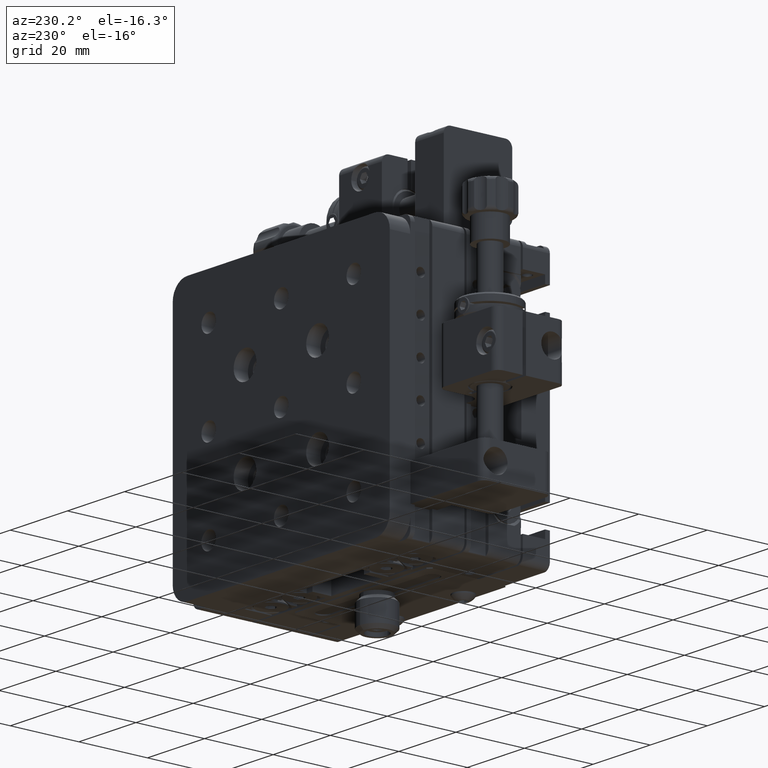
[diagram: clean part render]
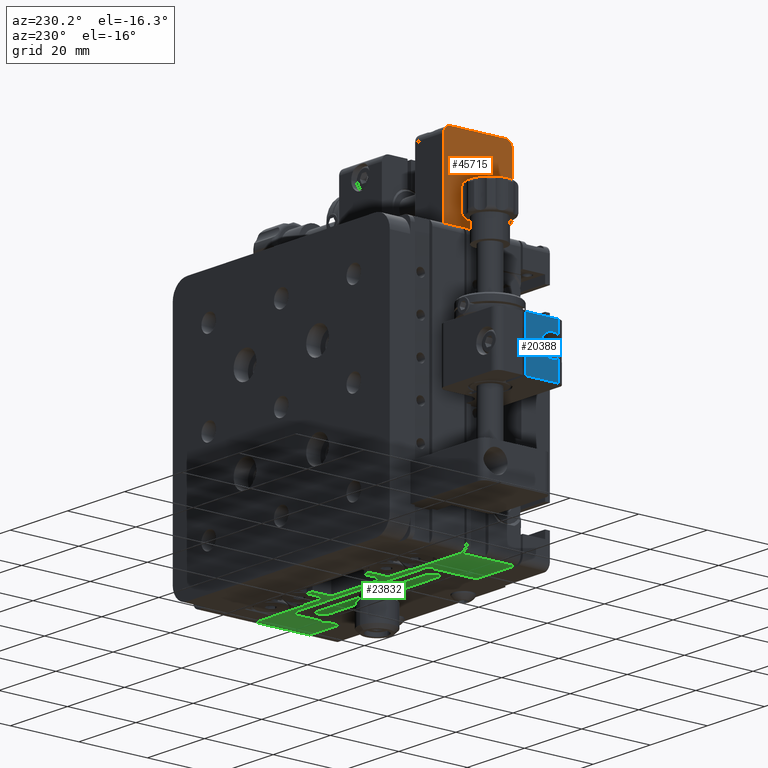
[diagram: same view with three faces highlighted in distinct colors, each labeled with its STEP entity id]
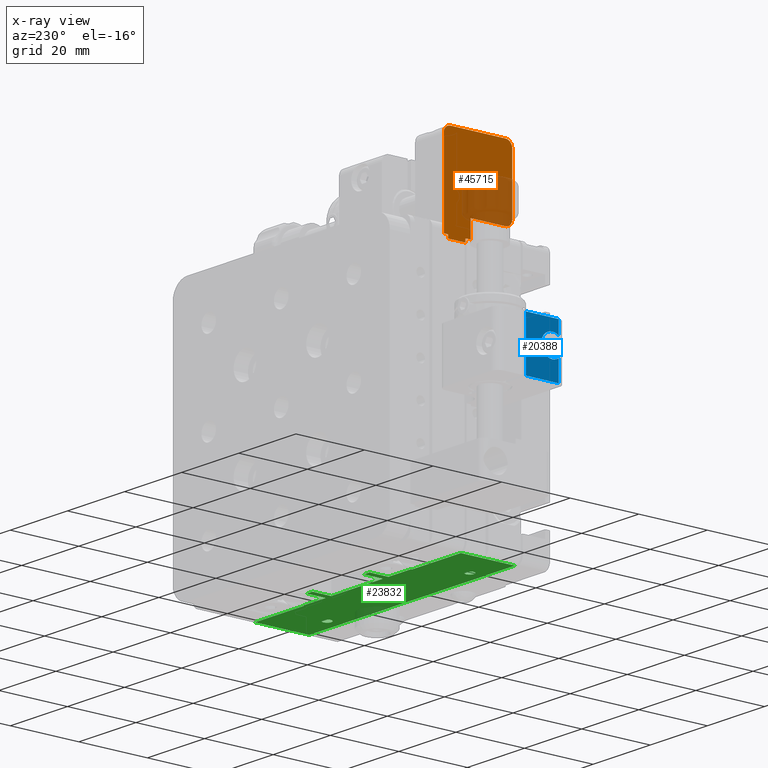
[diagram: x-ray of the same camera — body ghosted, the three highlighted faces saturated]
A machine part, auxiliary view with three faces highlighted in distinct colors.
The next image is the same camera in x-ray (body ghosted, the three faces saturated) — at least one of them is partly hidden behind the body in this view.
Their STEP definitions:

[orange] entity #45715 — the highlighted planar face has unit normal (1, -0, -0).
#528 = ORIENTED_EDGE ( 'NONE', *, *, #18943, .F. ) ;
#1100 = CARTESIAN_POINT ( 'NONE',  ( -12.90904611341228000, -13.67927325432013300, 166.6500000000001800 ) ) ;
#2164 = LINE ( 'NONE', #6871, #31896 ) ;
#2196 = DIRECTION ( 'NONE',  ( 1.000000000000000000, -1.110223024625156000E-016, -7.227914031696188500E-019 ) ) ;
#2793 = EDGE_CURVE ( 'NONE', #43805, #29970, #38600, .T. ) ;
#3401 = CARTESIAN_POINT ( 'NONE',  ( -12.90904611341228000, -13.67927325432012300, 148.1500000000002000 ) ) ;
#3475 = CARTESIAN_POINT ( 'NONE',  ( -12.90904611341228000, -3.479273254320129900, 146.1500000000001500 ) ) ;
#3511 = DIRECTION ( 'NONE',  ( 1.000000000000000000, -1.110223024625156000E-016, -7.227914031693551900E-019 ) ) ;
#3629 = DIRECTION ( 'NONE',  ( 1.110223024625154800E-016, 1.000000000000000000, 5.965587692102107000E-016 ) ) ;
#3852 = DIRECTION ( 'NONE',  ( 1.110223024625154400E-016, 1.000000000000000000, -4.681921624082249700E-014 ) ) ;
#4567 = CARTESIAN_POINT ( 'NONE',  ( -12.90904611341228000, -15.67927325432013100, 164.6500000000001800 ) ) ;
#4793 = AXIS2_PLACEMENT_3D ( 'NONE', #25463, #2196, #29359 ) ;
#5714 = DIRECTION ( 'NONE',  ( 7.227914031695526000E-019, -5.965587692102110000E-016, 1.000000000000000000 ) ) ;
#5840 = ORIENTED_EDGE ( 'NONE', *, *, #21191, .F. ) ;
#6229 = CARTESIAN_POINT ( 'NONE',  ( -12.90904611341227900, 4.320726745679873000, 164.6500000000001500 ) ) ;
#6625 = DIRECTION ( 'NONE',  ( 1.000000000000000000, -1.110223024625156000E-016, -7.227914031693551900E-019 ) ) ;
#6871 = CARTESIAN_POINT ( 'NONE',  ( -12.90904611341228000, -3.479273254320127200, 141.1500000000002300 ) ) ;
#7324 = DIRECTION ( 'NONE',  ( 0.0000000000000000000, -8.673617379884027600E-016, 1.000000000000000000 ) ) ;
#7509 = DIRECTION ( 'NONE',  ( 1.110223024625154800E-016, 1.000000000000000000, -5.015781888361816800E-015 ) ) ;
#7637 = ORIENTED_EDGE ( 'NONE', *, *, #16347, .F. ) ;
#7757 = EDGE_CURVE ( 'NONE', #26140, #34397, #47837, .T. ) ;
#7977 = CARTESIAN_POINT ( 'NONE',  ( -12.90904611341228000, -1.979273254320125900, 140.1500000000002000 ) ) ;
#8071 = VECTOR ( 'NONE', #47791, 1000.000000000000000 ) ;
#8097 = EDGE_CURVE ( 'NONE', #24810, #43805, #21140, .T. ) ;
#8159 = EDGE_CURVE ( 'NONE', #25894, #24810, #46016, .T. ) ;
#9299 = VERTEX_POINT ( 'NONE', #12366 ) ;
#9469 = CARTESIAN_POINT ( 'NONE',  ( -12.90904611341228000, -15.67927325432012400, 148.1500000000002000 ) ) ;
#9822 = PLANE ( 'NONE',  #4793 ) ;
#10023 = VERTEX_POINT ( 'NONE', #25569 ) ;
#10148 = LINE ( 'NONE', #24076, #29576 ) ;
#10180 = VERTEX_POINT ( 'NONE', #46214 ) ;
#10186 = CARTESIAN_POINT ( 'NONE',  ( -12.90904611341227900, 4.320726745679887200, 141.1500000000002300 ) ) ;
#11005 = VECTOR ( 'NONE', #22637, 1000.000000000000000 ) ;
#11386 = CARTESIAN_POINT ( 'NONE',  ( -12.90904611341228000, -13.67927325432012100, 146.1500000000002000 ) ) ;
#12366 = CARTESIAN_POINT ( 'NONE',  ( -12.90904611341228000, -3.479273254320127200, 141.1500000000002300 ) ) ;
#13390 = DIRECTION ( 'NONE',  ( -7.227914031695526000E-019, 5.965587692102110000E-016, -1.000000000000000000 ) ) ;
#13428 = LINE ( 'NONE', #18775, #11005 ) ;
#13959 = EDGE_LOOP ( 'NONE', ( #28003, #17844, #41839, #7637, #16393, #528, #41222, #19794, #34221, #29233, #41847, #20401, #5840 ) ) ;
#15099 = VECTOR ( 'NONE', #5714, 1000.000000000000000 ) ;
#15571 = CARTESIAN_POINT ( 'NONE',  ( -12.90904611341228000, 3.020726745679874100, 141.1500000000002300 ) ) ;
#16347 = EDGE_CURVE ( 'NONE', #34397, #25894, #25410, .T. ) ;
#16393 = ORIENTED_EDGE ( 'NONE', *, *, #7757, .F. ) ;
#16446 = CARTESIAN_POINT ( 'NONE',  ( -12.90904611341228000, 3.020726745679874100, 140.1500000000002000 ) ) ;
#17256 = VECTOR ( 'NONE', #13390, 1000.000000000000000 ) ;
#17844 = ORIENTED_EDGE ( 'NONE', *, *, #8097, .F. ) ;
#18033 = EDGE_CURVE ( 'NONE', #21250, #9299, #2164, .T. ) ;
#18400 = LINE ( 'NONE', #35980, #8071 ) ;
#18478 = LINE ( 'NONE', #40509, #17256 ) ;
#18775 = CARTESIAN_POINT ( 'NONE',  ( -12.90904611341228000, -15.67927325432013100, 164.6500000000001800 ) ) ;
#18943 = EDGE_CURVE ( 'NONE', #40508, #26140, #18400, .T. ) ;
#19523 = VECTOR ( 'NONE', #7509, 1000.000000000000000 ) ;
#19794 = ORIENTED_EDGE ( 'NONE', *, *, #20482, .F. ) ;
#20401 = ORIENTED_EDGE ( 'NONE', *, *, #38504, .F. ) ;
#20482 = EDGE_CURVE ( 'NONE', #10180, #46958, #18478, .T. ) ;
#20715 = LINE ( 'NONE', #11386, #19523 ) ;
#21128 = CARTESIAN_POINT ( 'NONE',  ( -12.90904611341227900, 4.320726745679887200, 141.1500000000002300 ) ) ;
#21140 = LINE ( 'NONE', #33095, #40533 ) ;
#21191 = EDGE_CURVE ( 'NONE', #29970, #48721, #13428, .T. ) ;
#21250 = VERTEX_POINT ( 'NONE', #3475 ) ;
#22637 = DIRECTION ( 'NONE',  ( -7.227914031695526000E-019, 5.965587692102110000E-016, -1.000000000000000000 ) ) ;
#22948 = CARTESIAN_POINT ( 'NONE',  ( -12.90904611341227900, 4.320726745679887200, 141.1500000000002300 ) ) ;
#23189 = CARTESIAN_POINT ( 'NONE',  ( -12.90904611341228000, -3.479273254320127200, 141.1500000000002300 ) ) ;
#23664 = FACE_OUTER_BOUND ( 'NONE', #13959, .T. ) ;
#24076 = CARTESIAN_POINT ( 'NONE',  ( -12.90904611341228000, 3.020726745679874100, 140.1500000000002000 ) ) ;
#24810 = VERTEX_POINT ( 'NONE', #44115 ) ;
#25317 = DIRECTION ( 'NONE',  ( -1.110223024625154800E-016, -1.000000000000000000, 2.981308399991953000E-015 ) ) ;
#25410 = LINE ( 'NONE', #21128, #15099 ) ;
#25463 = CARTESIAN_POINT ( 'NONE',  ( -12.90904611341228000, -13.67927325432013300, 164.6500000000002000 ) ) ;
#25569 = CARTESIAN_POINT ( 'NONE',  ( -12.90904611341228000, -13.67927325432012100, 146.1500000000002000 ) ) ;
#25894 = VERTEX_POINT ( 'NONE', #6229 ) ;
#26140 = VERTEX_POINT ( 'NONE', #15571 ) ;
#26241 = DIRECTION ( 'NONE',  ( -7.227914031695526000E-019, 5.965587692102110000E-016, -1.000000000000000000 ) ) ;
#26789 = CARTESIAN_POINT ( 'NONE',  ( -12.90904611341228000, -13.67927325432013300, 164.6500000000002000 ) ) ;
#26816 = EDGE_CURVE ( 'NONE', #46958, #40508, #10148, .T. ) ;
#27973 = DIRECTION ( 'NONE',  ( 1.110223024625154800E-016, 1.000000000000000000, 1.984337549991656100E-015 ) ) ;
#28003 = ORIENTED_EDGE ( 'NONE', *, *, #2793, .F. ) ;
#28859 = AXIS2_PLACEMENT_3D ( 'NONE', #26789, #3511, #30668 ) ;
#29233 = ORIENTED_EDGE ( 'NONE', *, *, #18033, .F. ) ;
#29359 = DIRECTION ( 'NONE',  ( 7.227914031695526000E-019, -5.965587692102110000E-016, 1.000000000000000000 ) ) ;
#29576 = VECTOR ( 'NONE', #27973, 1000.000000000000000 ) ;
#29882 = CARTESIAN_POINT ( 'NONE',  ( -12.90904611341228000, 2.320726745679871700, 164.6500000000001500 ) ) ;
#29970 = VERTEX_POINT ( 'NONE', #4567 ) ;
#30554 = DIRECTION ( 'NONE',  ( 1.000000000000000000, -1.110223024625156000E-016, -7.227914031693551900E-019 ) ) ;
#30668 = DIRECTION ( 'NONE',  ( 0.0000000000000000000, -8.673617379884027600E-016, 1.000000000000000000 ) ) ;
#31896 = VECTOR ( 'NONE', #26241, 1000.000000000000000 ) ;
#33095 = CARTESIAN_POINT ( 'NONE',  ( -12.90904611341228000, 2.320726745679869900, 166.6500000000001500 ) ) ;
#33549 = EDGE_CURVE ( 'NONE', #9299, #10180, #36604, .T. ) ;
#33768 = DIRECTION ( 'NONE',  ( 0.0000000000000000000, -6.505213034913020700E-016, 1.000000000000000000 ) ) ;
#34221 = ORIENTED_EDGE ( 'NONE', *, *, #33549, .F. ) ;
#34397 = VERTEX_POINT ( 'NONE', #10186 ) ;
#35980 = CARTESIAN_POINT ( 'NONE',  ( -12.90904611341228000, 3.020726745679874100, 140.1500000000002000 ) ) ;
#36604 = LINE ( 'NONE', #23189, #45683 ) ;
#37807 = AXIS2_PLACEMENT_3D ( 'NONE', #29882, #6625, #33768 ) ;
#38504 = EDGE_CURVE ( 'NONE', #48721, #10023, #46817, .T. ) ;
#38600 = CIRCLE ( 'NONE', #28859, 2.000000000000001800 ) ;
#40508 = VERTEX_POINT ( 'NONE', #16446 ) ;
#40509 = CARTESIAN_POINT ( 'NONE',  ( -12.90904611341228000, -1.979273254320125900, 140.1500000000002000 ) ) ;
#40533 = VECTOR ( 'NONE', #25317, 1000.000000000000000 ) ;
#41222 = ORIENTED_EDGE ( 'NONE', *, *, #26816, .F. ) ;
#41385 = EDGE_CURVE ( 'NONE', #10023, #21250, #20715, .T. ) ;
#41839 = ORIENTED_EDGE ( 'NONE', *, *, #8159, .F. ) ;
#41847 = ORIENTED_EDGE ( 'NONE', *, *, #41385, .F. ) ;
#43805 = VERTEX_POINT ( 'NONE', #1100 ) ;
#44115 = CARTESIAN_POINT ( 'NONE',  ( -12.90904611341228000, 2.320726745679869900, 166.6500000000001500 ) ) ;
#45683 = VECTOR ( 'NONE', #3852, 1000.000000000000000 ) ;
#45715 = ADVANCED_FACE ( 'NONE', ( #23664 ), #9822, .F. ) ;
#46016 = CIRCLE ( 'NONE', #37807, 2.000000000000001800 ) ;
#46214 = CARTESIAN_POINT ( 'NONE',  ( -12.90904611341228000, -1.979273254320126800, 141.1500000000001500 ) ) ;
#46657 = VECTOR ( 'NONE', #3629, 1000.000000000000000 ) ;
#46817 = CIRCLE ( 'NONE', #47354, 2.000000000000001800 ) ;
#46958 = VERTEX_POINT ( 'NONE', #7977 ) ;
#47354 = AXIS2_PLACEMENT_3D ( 'NONE', #3401, #30554, #7324 ) ;
#47791 = DIRECTION ( 'NONE',  ( 7.227914031695526000E-019, -5.965587692102110000E-016, 1.000000000000000000 ) ) ;
#47837 = LINE ( 'NONE', #22948, #46657 ) ;
#48721 = VERTEX_POINT ( 'NONE', #9469 ) ;

[blue] entity #20388 — the highlighted planar face has unit normal (-1, 0, -0).
#640 = CARTESIAN_POINT ( 'NONE',  ( -46.40904611341228000, 0.5207267456799804500, 108.1499999999999500 ) ) ;
#1034 = DIRECTION ( 'NONE',  ( 2.522337235784662800E-044, 1.609823385706477300E-014, 1.000000000000000000 ) ) ;
#1505 = DIRECTION ( 'NONE',  ( -4.733165431326042800E-030, 1.000000000000000000, -1.609823385706477000E-014 ) ) ;
#1705 = ORIENTED_EDGE ( 'NONE', *, *, #39768, .F. ) ;
#1718 = ORIENTED_EDGE ( 'NONE', *, *, #46557, .F. ) ;
#2433 = CARTESIAN_POINT ( 'NONE',  ( -46.40904611341228000, -1.279273254319987800, 110.8560118255469400 ) ) ;
#4042 = EDGE_CURVE ( 'NONE', #37215, #23557, #37737, .T. ) ;
#4542 = DIRECTION ( 'NONE',  ( 0.0000000000000000000, 1.611291228647687000E-014, 1.000000000000000000 ) ) ;
#6758 = VERTEX_POINT ( 'NONE', #47044 ) ;
#7876 = ORIENTED_EDGE ( 'NONE', *, *, #9279, .F. ) ;
#8535 = CARTESIAN_POINT ( 'NONE',  ( -46.40904611341228000, -1.279273254319800400, 121.6500000000000300 ) ) ;
#8719 = DIRECTION ( 'NONE',  ( -1.000000000000000000, 4.141519752410293100E-030, -8.628933199850131800E-044 ) ) ;
#9279 = EDGE_CURVE ( 'NONE', #11195, #37215, #35677, .T. ) ;
#10198 = CARTESIAN_POINT ( 'NONE',  ( -46.40904611341228000, 0.5207267456799284900, 104.8999999999999600 ) ) ;
#10214 = FACE_OUTER_BOUND ( 'NONE', #20219, .T. ) ;
#10831 = VECTOR ( 'NONE', #27883, 1000.000000000000000 ) ;
#11195 = VERTEX_POINT ( 'NONE', #2433 ) ;
#12082 = VECTOR ( 'NONE', #17463, 1000.000000000000000 ) ;
#13445 = AXIS2_PLACEMENT_3D ( 'NONE', #47489, #24307, #1034 ) ;
#13537 = CARTESIAN_POINT ( 'NONE',  ( -46.40904611341228000, -3.279273254319934300, 114.6500000000000500 ) ) ;
#15143 = VERTEX_POINT ( 'NONE', #22966 ) ;
#16879 = CARTESIAN_POINT ( 'NONE',  ( -46.40904611341228000, 8.220726745680121200, 114.6499999999998600 ) ) ;
#16955 = ORIENTED_EDGE ( 'NONE', *, *, #26806, .F. ) ;
#17463 = DIRECTION ( 'NONE',  ( -4.733165431326042800E-030, 1.000000000000000000, -1.609823385706477000E-014 ) ) ;
#20084 = CARTESIAN_POINT ( 'NONE',  ( -46.40904611341228000, -1.279273254320168400, 99.64999999999996300 ) ) ;
#20219 = EDGE_LOOP ( 'NONE', ( #7876, #1705, #46215, #43390, #45606, #1718, #16955, #46933 ) ) ;
#20388 = ADVANCED_FACE ( 'NONE', ( #10214 ), #39525, .T. ) ;
#20856 = CARTESIAN_POINT ( 'NONE',  ( -46.40904611341228000, 8.220726745679854700, 99.64999999999980700 ) ) ;
#21976 = DIRECTION ( 'NONE',  ( -1.000000000000000000, 4.141519752410293100E-030, -8.628933199850131800E-044 ) ) ;
#22180 = CARTESIAN_POINT ( 'NONE',  ( -46.40904611341228000, 0.5207267456800328500, 111.3999999999999500 ) ) ;
#22390 = CARTESIAN_POINT ( 'NONE',  ( -46.40904611341228000, -1.279273254319800400, 121.6500000000000300 ) ) ;
#22966 = CARTESIAN_POINT ( 'NONE',  ( -46.40904611341228000, 8.220726745679854700, 99.64999999999980700 ) ) ;
#23557 = VERTEX_POINT ( 'NONE', #10198 ) ;
#23723 = AXIS2_PLACEMENT_3D ( 'NONE', #31944, #8719, #35892 ) ;
#23982 = CARTESIAN_POINT ( 'NONE',  ( -46.40904611341228000, 8.220726745680208200, 121.6499999999998800 ) ) ;
#24307 = DIRECTION ( 'NONE',  ( -1.000000000000000000, 4.141519752410293800E-030, -4.144778114010728100E-044 ) ) ;
#24754 = VERTEX_POINT ( 'NONE', #16879 ) ;
#25782 = CARTESIAN_POINT ( 'NONE',  ( -46.40904611341228000, -1.279273254319925400, 114.6500000000000200 ) ) ;
#26355 = DIRECTION ( 'NONE',  ( -2.522337235784663300E-044, -1.609823385706477000E-014, -1.000000000000000000 ) ) ;
#26522 = LINE ( 'NONE', #8535, #47115 ) ;
#26806 = EDGE_CURVE ( 'NONE', #23557, #6758, #31981, .T. ) ;
#27203 = VECTOR ( 'NONE', #26355, 1000.000000000000000 ) ;
#27318 = LINE ( 'NONE', #20856, #37599 ) ;
#27811 = DIRECTION ( 'NONE',  ( -1.000000000000000000, 4.141519752410293100E-030, -8.628933199850131800E-044 ) ) ;
#27883 = DIRECTION ( 'NONE',  ( -2.522337235784663300E-044, -1.609823385706477000E-014, -1.000000000000000000 ) ) ;
#28529 = VERTEX_POINT ( 'NONE', #25782 ) ;
#29332 = EDGE_CURVE ( 'NONE', #24754, #15143, #36937, .T. ) ;
#31944 = CARTESIAN_POINT ( 'NONE',  ( -46.40904611341228000, 0.5207267456799804500, 108.1499999999999500 ) ) ;
#31981 = CIRCLE ( 'NONE', #48298, 3.250000000000002700 ) ;
#32717 = LINE ( 'NONE', #13537, #12082 ) ;
#34352 = AXIS2_PLACEMENT_3D ( 'NONE', #45247, #21976, #49107 ) ;
#35677 = CIRCLE ( 'NONE', #34352, 3.250000000000002700 ) ;
#35892 = DIRECTION ( 'NONE',  ( 0.0000000000000000000, 1.611291228647687000E-014, 1.000000000000000000 ) ) ;
#36010 = EDGE_CURVE ( 'NONE', #36411, #15143, #27318, .T. ) ;
#36081 = EDGE_CURVE ( 'NONE', #28529, #24754, #32717, .T. ) ;
#36411 = VERTEX_POINT ( 'NONE', #20084 ) ;
#36937 = LINE ( 'NONE', #23982, #10831 ) ;
#37215 = VERTEX_POINT ( 'NONE', #22180 ) ;
#37481 = LINE ( 'NONE', #22390, #27203 ) ;
#37599 = VECTOR ( 'NONE', #1505, 1000.000000000000000 ) ;
#37737 = CIRCLE ( 'NONE', #23723, 3.250000000000002700 ) ;
#38897 = DIRECTION ( 'NONE',  ( -2.522337235784663300E-044, -1.609823385706477000E-014, -1.000000000000000000 ) ) ;
#39525 = PLANE ( 'NONE',  #13445 ) ;
#39768 = EDGE_CURVE ( 'NONE', #28529, #11195, #37481, .T. ) ;
#43390 = ORIENTED_EDGE ( 'NONE', *, *, #29332, .T. ) ;
#45247 = CARTESIAN_POINT ( 'NONE',  ( -46.40904611341228000, 0.5207267456799804500, 108.1499999999999500 ) ) ;
#45606 = ORIENTED_EDGE ( 'NONE', *, *, #36010, .F. ) ;
#46215 = ORIENTED_EDGE ( 'NONE', *, *, #36081, .T. ) ;
#46557 = EDGE_CURVE ( 'NONE', #6758, #36411, #26522, .T. ) ;
#46933 = ORIENTED_EDGE ( 'NONE', *, *, #4042, .F. ) ;
#47044 = CARTESIAN_POINT ( 'NONE',  ( -46.40904611341228000, -1.279273254320074700, 105.4439881744530300 ) ) ;
#47115 = VECTOR ( 'NONE', #38897, 1000.000000000000000 ) ;
#47489 = CARTESIAN_POINT ( 'NONE',  ( -46.40904611341228000, 8.220726745680208200, 121.6499999999998800 ) ) ;
#48298 = AXIS2_PLACEMENT_3D ( 'NONE', #640, #27811, #4542 ) ;
#49107 = DIRECTION ( 'NONE',  ( 0.0000000000000000000, 1.611291228647687000E-014, 1.000000000000000000 ) ) ;

[green] entity #23832 — the highlighted planar face has unit normal (-0, 0, 1).
#345 = VERTEX_POINT ( 'NONE', #32593 ) ;
#1170 = VECTOR ( 'NONE', #2807, 1000.000000000000000 ) ;
#1420 = LINE ( 'NONE', #22528, #37813 ) ;
#1837 = CIRCLE ( 'NONE', #47769, 1.249999999999987100 ) ;
#1850 = CARTESIAN_POINT ( 'NONE',  ( -18.90904611341227300, 4.320726745679895200, 65.15000000000021900 ) ) ;
#1854 = CARTESIAN_POINT ( 'NONE',  ( 42.09095388658772000, -7.479273254320102800, 65.15000000000021900 ) ) ;
#2106 = EDGE_CURVE ( 'NONE', #37937, #42158, #20450, .T. ) ;
#2291 = CARTESIAN_POINT ( 'NONE',  ( -1.909046113412280700, 4.320726745679895200, 65.15000000000021900 ) ) ;
#2334 = CARTESIAN_POINT ( 'NONE',  ( -6.659046113412292000, -7.479273254320102800, 65.15000000000021900 ) ) ;
#2690 = EDGE_CURVE ( 'NONE', #43867, #37548, #13122, .T. ) ;
#2765 = DIRECTION ( 'NONE',  ( -1.000000000000000000, 0.0000000000000000000, 0.0000000000000000000 ) ) ;
#2807 = DIRECTION ( 'NONE',  ( 0.0000000000000000000, -1.000000000000000000, 0.0000000000000000000 ) ) ;
#2927 = VERTEX_POINT ( 'NONE', #31001 ) ;
#3245 = ORIENTED_EDGE ( 'NONE', *, *, #38117, .F. ) ;
#3342 = DIRECTION ( 'NONE',  ( -0.0000000000000000000, -1.000000000000000000, -0.0000000000000000000 ) ) ;
#3358 = EDGE_CURVE ( 'NONE', #9298, #33323, #28214, .T. ) ;
#3594 = CARTESIAN_POINT ( 'NONE',  ( 42.09095388658772000, -7.479273254320102800, 65.15000000000021900 ) ) ;
#3678 = EDGE_CURVE ( 'NONE', #345, #39548, #49356, .T. ) ;
#3736 = VECTOR ( 'NONE', #14928, 1000.000000000000000 ) ;
#4199 = VERTEX_POINT ( 'NONE', #49241 ) ;
#4348 = ORIENTED_EDGE ( 'NONE', *, *, #28538, .T. ) ;
#4882 = CARTESIAN_POINT ( 'NONE',  ( 6.090953886587719500, 4.620726745679896800, 65.15000000000021900 ) ) ;
#5051 = AXIS2_PLACEMENT_3D ( 'NONE', #3594, #30739, #7502 ) ;
#5317 = VERTEX_POINT ( 'NONE', #39480 ) ;
#5763 = DIRECTION ( 'NONE',  ( -1.000000000000000000, 0.0000000000000000000, 0.0000000000000000000 ) ) ;
#5995 = LINE ( 'NONE', #39123, #16352 ) ;
#6065 = ORIENTED_EDGE ( 'NONE', *, *, #30232, .T. ) ;
#6080 = ORIENTED_EDGE ( 'NONE', *, *, #6349, .F. ) ;
#6349 = EDGE_CURVE ( 'NONE', #39548, #345, #23882, .T. ) ;
#6559 = DIRECTION ( 'NONE',  ( 0.0000000000000000000, 1.000000000000000000, 0.0000000000000000000 ) ) ;
#7135 = EDGE_LOOP ( 'NONE', ( #23764, #3245 ) ) ;
#7502 = DIRECTION ( 'NONE',  ( -1.000000000000000000, 0.0000000000000000000, 0.0000000000000000000 ) ) ;
#7830 = AXIS2_PLACEMENT_3D ( 'NONE', #39156, #15991, #43028 ) ;
#7881 = CARTESIAN_POINT ( 'NONE',  ( 17.09095388658772300, -7.479273254320102800, 65.15000000000021900 ) ) ;
#8209 = CARTESIAN_POINT ( 'NONE',  ( 17.09095388658771600, 10.12072674567989400, 65.15000000000021900 ) ) ;
#8357 = DIRECTION ( 'NONE',  ( -1.000000000000000000, -2.168404344971008900E-016, 0.0000000000000000000 ) ) ;
#8452 = CARTESIAN_POINT ( 'NONE',  ( 17.09095388658772300, -1.279273254320102400, 65.15000000000021900 ) ) ;
#8691 = VECTOR ( 'NONE', #28314, 1000.000000000000000 ) ;
#8919 = VECTOR ( 'NONE', #33720, 1000.000000000000000 ) ;
#9298 = VERTEX_POINT ( 'NONE', #35641 ) ;
#9432 = CARTESIAN_POINT ( 'NONE',  ( 36.09095388658771200, -3.579273254320105600, 65.15000000000021900 ) ) ;
#10703 = ORIENTED_EDGE ( 'NONE', *, *, #44833, .F. ) ;
#11489 = LINE ( 'NONE', #49287, #1170 ) ;
#11750 = DIRECTION ( 'NONE',  ( -1.000000000000000000, 0.0000000000000000000, 0.0000000000000000000 ) ) ;
#12087 = CARTESIAN_POINT ( 'NONE',  ( 17.09095388658772300, -7.479273254320102800, 65.15000000000021900 ) ) ;
#12204 = AXIS2_PLACEMENT_3D ( 'NONE', #7881, #35042, #11750 ) ;
#12348 = DIRECTION ( 'NONE',  ( -1.000000000000000000, 0.0000000000000000000, 0.0000000000000000000 ) ) ;
#12465 = ORIENTED_EDGE ( 'NONE', *, *, #25393, .F. ) ;
#12764 = DIRECTION ( 'NONE',  ( -0.0000000000000000000, -0.0000000000000000000, -1.000000000000000000 ) ) ;
#12767 = CARTESIAN_POINT ( 'NONE',  ( 8.090953886587719500, 10.12072674567989400, 65.15000000000021900 ) ) ;
#13030 = DIRECTION ( 'NONE',  ( 0.0000000000000000000, -1.000000000000000000, 0.0000000000000000000 ) ) ;
#13122 = LINE ( 'NONE', #21826, #32557 ) ;
#13275 = VERTEX_POINT ( 'NONE', #26409 ) ;
#13282 = CARTESIAN_POINT ( 'NONE',  ( 28.09095388658772000, 10.12072674567989400, 65.15000000000021900 ) ) ;
#13307 = DIRECTION ( 'NONE',  ( 0.0000000000000000000, -1.000000000000000000, 0.0000000000000000000 ) ) ;
#13416 = CIRCLE ( 'NONE', #12204, 1.249999999999990700 ) ;
#13507 = CARTESIAN_POINT ( 'NONE',  ( 40.84095388658773400, -7.479273254320102800, 65.15000000000021900 ) ) ;
#14064 = LINE ( 'NONE', #49477, #3736 ) ;
#14851 = VERTEX_POINT ( 'NONE', #13507 ) ;
#14928 = DIRECTION ( 'NONE',  ( 0.0000000000000000000, -1.000000000000000000, 0.0000000000000000000 ) ) ;
#15032 = CARTESIAN_POINT ( 'NONE',  ( 8.090953886587719500, 4.620726745679893300, 65.15000000000021900 ) ) ;
#15509 = ORIENTED_EDGE ( 'NONE', *, *, #25283, .F. ) ;
#15991 = DIRECTION ( 'NONE',  ( -0.0000000000000000000, 0.0000000000000000000, 1.000000000000000000 ) ) ;
#16011 = CARTESIAN_POINT ( 'NONE',  ( 15.84095388658773200, -7.479273254320102800, 65.15000000000021900 ) ) ;
#16056 = DIRECTION ( 'NONE',  ( -1.000000000000000000, 0.0000000000000000000, 0.0000000000000000000 ) ) ;
#16352 = VECTOR ( 'NONE', #19831, 1000.000000000000000 ) ;
#16646 = VECTOR ( 'NONE', #33586, 1000.000000000000000 ) ;
#17114 = LINE ( 'NONE', #29815, #31061 ) ;
#17138 = FACE_BOUND ( 'NONE', #38351, .T. ) ;
#17263 = VERTEX_POINT ( 'NONE', #1850 ) ;
#18143 = DIRECTION ( 'NONE',  ( 0.0000000000000000000, -1.000000000000000000, 0.0000000000000000000 ) ) ;
#18724 = VECTOR ( 'NONE', #13307, 1000.000000000000000 ) ;
#18732 = VECTOR ( 'NONE', #3342, 1000.000000000000000 ) ;
#18790 = DIRECTION ( 'NONE',  ( -1.000000000000000000, -9.637352644315595200E-017, 0.0000000000000000000 ) ) ;
#18801 = ORIENTED_EDGE ( 'NONE', *, *, #45998, .T. ) ;
#19279 = LINE ( 'NONE', #41319, #8919 ) ;
#19616 = VECTOR ( 'NONE', #31435, 1000.000000000000000 ) ;
#19831 = DIRECTION ( 'NONE',  ( 1.000000000000000000, -4.565061778886334000E-016, 0.0000000000000000000 ) ) ;
#20450 = LINE ( 'NONE', #32904, #29552 ) ;
#20629 = DIRECTION ( 'NONE',  ( -0.0000000000000000000, -0.0000000000000000000, -1.000000000000000000 ) ) ;
#20664 = EDGE_CURVE ( 'NONE', #5317, #40126, #1420, .T. ) ;
#20740 = LINE ( 'NONE', #30479, #25003 ) ;
#20768 = CARTESIAN_POINT ( 'NONE',  ( 17.09095388658771200, 4.620726745679896800, 65.15000000000021900 ) ) ;
#21000 = CARTESIAN_POINT ( 'NONE',  ( 26.09095388658772000, 10.12072674567989400, 65.15000000000021900 ) ) ;
#21826 = CARTESIAN_POINT ( 'NONE',  ( 6.090953886587719500, -3.579273254320105600, 65.15000000000021900 ) ) ;
#21854 = VERTEX_POINT ( 'NONE', #24832 ) ;
#21875 = ORIENTED_EDGE ( 'NONE', *, *, #2690, .F. ) ;
#22144 = ORIENTED_EDGE ( 'NONE', *, *, #28617, .F. ) ;
#22258 = CIRCLE ( 'NONE', #5051, 1.249999999999987100 ) ;
#22345 = DIRECTION ( 'NONE',  ( 1.000000000000000000, 1.141265444721583800E-016, 0.0000000000000000000 ) ) ;
#22528 = CARTESIAN_POINT ( 'NONE',  ( 17.09095388658771600, -11.47927325432010400, 65.15000000000021900 ) ) ;
#22595 = EDGE_CURVE ( 'NONE', #21854, #40126, #39320, .T. ) ;
#23265 = ORIENTED_EDGE ( 'NONE', *, *, #41014, .T. ) ;
#23764 = ORIENTED_EDGE ( 'NONE', *, *, #44739, .F. ) ;
#23832 = ADVANCED_FACE ( 'NONE', ( #27468, #46846, #17138, #37728, #36552 ), #38996, .F. ) ;
#23882 = CIRCLE ( 'NONE', #42511, 1.249999999999990700 ) ;
#24365 = LINE ( 'NONE', #20768, #43715 ) ;
#24441 = CARTESIAN_POINT ( 'NONE',  ( 17.09095388658771600, 10.12072674567989400, 65.15000000000021900 ) ) ;
#24661 = ORIENTED_EDGE ( 'NONE', *, *, #22595, .T. ) ;
#24690 = CARTESIAN_POINT ( 'NONE',  ( 18.34095388658771200, -1.279273254320102200, 65.15000000000021900 ) ) ;
#24832 = CARTESIAN_POINT ( 'NONE',  ( 53.09095388658772000, 4.320726745679888100, 65.15000000000021900 ) ) ;
#25003 = VECTOR ( 'NONE', #18790, 1000.000000000000000 ) ;
#25133 = CARTESIAN_POINT ( 'NONE',  ( 53.09095388658772000, -11.47927325432010000, 65.15000000000021900 ) ) ;
#25283 = EDGE_CURVE ( 'NONE', #44509, #40723, #48965, .T. ) ;
#25393 = EDGE_CURVE ( 'NONE', #13275, #14851, #37454, .T. ) ;
#25439 = ORIENTED_EDGE ( 'NONE', *, *, #31528, .T. ) ;
#26061 = DIRECTION ( 'NONE',  ( -0.0000000000000000000, -0.0000000000000000000, -1.000000000000000000 ) ) ;
#26158 = ORIENTED_EDGE ( 'NONE', *, *, #36757, .F. ) ;
#26409 = CARTESIAN_POINT ( 'NONE',  ( 43.34095388658770500, -7.479273254320102800, 65.15000000000021900 ) ) ;
#26429 = LINE ( 'NONE', #48993, #16646 ) ;
#26646 = AXIS2_PLACEMENT_3D ( 'NONE', #8452, #35620, #12348 ) ;
#27468 = FACE_BOUND ( 'NONE', #7135, .T. ) ;
#28135 = ORIENTED_EDGE ( 'NONE', *, *, #46172, .T. ) ;
#28191 = EDGE_CURVE ( 'NONE', #28371, #2927, #14064, .T. ) ;
#28214 = CIRCLE ( 'NONE', #28569, 1.249999999999987100 ) ;
#28314 = DIRECTION ( 'NONE',  ( 1.000000000000000000, 0.0000000000000000000, 0.0000000000000000000 ) ) ;
#28371 = VERTEX_POINT ( 'NONE', #21000 ) ;
#28538 = EDGE_CURVE ( 'NONE', #5317, #17263, #17114, .T. ) ;
#28569 = AXIS2_PLACEMENT_3D ( 'NONE', #49244, #26061, #2765 ) ;
#28617 = EDGE_CURVE ( 'NONE', #2927, #46426, #20740, .T. ) ;
#28880 = EDGE_CURVE ( 'NONE', #33323, #9298, #1837, .T. ) ;
#29003 = DIRECTION ( 'NONE',  ( -0.0000000000000000000, -0.0000000000000000000, -1.000000000000000000 ) ) ;
#29027 = LINE ( 'NONE', #9432, #18724 ) ;
#29552 = VECTOR ( 'NONE', #33938, 1000.000000000000000 ) ;
#29815 = CARTESIAN_POINT ( 'NONE',  ( -18.90904611341227300, -3.579273254320105600, 65.15000000000021900 ) ) ;
#30232 = EDGE_CURVE ( 'NONE', #49815, #46426, #19279, .T. ) ;
#30457 = CARTESIAN_POINT ( 'NONE',  ( 28.09095388658772000, 4.620726745679896800, 65.15000000000021900 ) ) ;
#30479 = CARTESIAN_POINT ( 'NONE',  ( 17.09095388658771600, 4.620726745679893300, 65.15000000000021900 ) ) ;
#30665 = VERTEX_POINT ( 'NONE', #13282 ) ;
#30739 = DIRECTION ( 'NONE',  ( -0.0000000000000000000, -0.0000000000000000000, -1.000000000000000000 ) ) ;
#31001 = CARTESIAN_POINT ( 'NONE',  ( 26.09095388658772000, 4.620726745679896800, 65.15000000000021900 ) ) ;
#31061 = VECTOR ( 'NONE', #6559, 1000.000000000000000 ) ;
#31144 = CARTESIAN_POINT ( 'NONE',  ( 36.09095388658771200, 4.620726745679896800, 65.15000000000021900 ) ) ;
#31435 = DIRECTION ( 'NONE',  ( 1.000000000000000000, 0.0000000000000000000, 0.0000000000000000000 ) ) ;
#31528 = EDGE_CURVE ( 'NONE', #28371, #30665, #39634, .T. ) ;
#31533 = ORIENTED_EDGE ( 'NONE', *, *, #3358, .F. ) ;
#32557 = VECTOR ( 'NONE', #18143, 1000.000000000000000 ) ;
#32593 = CARTESIAN_POINT ( 'NONE',  ( 15.84095388658773200, -1.279273254320102400, 65.15000000000021900 ) ) ;
#32628 = AXIS2_PLACEMENT_3D ( 'NONE', #1854, #29003, #5763 ) ;
#32863 = EDGE_CURVE ( 'NONE', #40723, #17263, #26429, .T. ) ;
#32904 = CARTESIAN_POINT ( 'NONE',  ( 17.09095388658771600, 4.620726745679896800, 65.15000000000021900 ) ) ;
#33323 = VERTEX_POINT ( 'NONE', #2334 ) ;
#33454 = ORIENTED_EDGE ( 'NONE', *, *, #3678, .F. ) ;
#33586 = DIRECTION ( 'NONE',  ( -1.000000000000000000, 0.0000000000000000000, 0.0000000000000000000 ) ) ;
#33668 = CARTESIAN_POINT ( 'NONE',  ( -1.909046113412280700, 4.620726745679893300, 65.15000000000021900 ) ) ;
#33720 = DIRECTION ( 'NONE',  ( 0.0000000000000000000, -1.000000000000000000, 0.0000000000000000000 ) ) ;
#33938 = DIRECTION ( 'NONE',  ( 1.000000000000000000, 0.0000000000000000000, 0.0000000000000000000 ) ) ;
#35042 = DIRECTION ( 'NONE',  ( -0.0000000000000000000, -0.0000000000000000000, -1.000000000000000000 ) ) ;
#35620 = DIRECTION ( 'NONE',  ( -0.0000000000000000000, -0.0000000000000000000, -1.000000000000000000 ) ) ;
#35641 = CARTESIAN_POINT ( 'NONE',  ( -9.159046113412266300, -7.479273254320102800, 65.15000000000021900 ) ) ;
#36056 = CARTESIAN_POINT ( 'NONE',  ( -7.909046113412278700, -7.479273254320102800, 65.15000000000021900 ) ) ;
#36366 = ORIENTED_EDGE ( 'NONE', *, *, #28880, .F. ) ;
#36552 = FACE_BOUND ( 'NONE', #46692, .T. ) ;
#36723 = CARTESIAN_POINT ( 'NONE',  ( 6.090953886587719500, 10.12072674567989400, 65.15000000000021900 ) ) ;
#36757 = EDGE_CURVE ( 'NONE', #14851, #13275, #22258, .T. ) ;
#37454 = CIRCLE ( 'NONE', #32628, 1.249999999999987100 ) ;
#37548 = VERTEX_POINT ( 'NONE', #4882 ) ;
#37648 = ORIENTED_EDGE ( 'NONE', *, *, #32863, .F. ) ;
#37728 = FACE_OUTER_BOUND ( 'NONE', #40651, .T. ) ;
#37813 = VECTOR ( 'NONE', #22345, 1000.000000000000000 ) ;
#37937 = VERTEX_POINT ( 'NONE', #30457 ) ;
#38117 = EDGE_CURVE ( 'NONE', #41810, #45392, #39070, .T. ) ;
#38351 = EDGE_LOOP ( 'NONE', ( #31533, #36366 ) ) ;
#38656 = VECTOR ( 'NONE', #13030, 1000.000000000000000 ) ;
#38996 = PLANE ( 'NONE',  #7830 ) ;
#39054 = ORIENTED_EDGE ( 'NONE', *, *, #20664, .F. ) ;
#39070 = CIRCLE ( 'NONE', #47644, 1.249999999999990700 ) ;
#39123 = CARTESIAN_POINT ( 'NONE',  ( 17.09095388658772000, 4.320726745679902300, 65.15000000000021900 ) ) ;
#39156 = CARTESIAN_POINT ( 'NONE',  ( 17.09095388658771600, -3.579273254320105600, 65.15000000000021900 ) ) ;
#39220 = DIRECTION ( 'NONE',  ( -0.0000000000000000000, -0.0000000000000000000, -1.000000000000000000 ) ) ;
#39320 = LINE ( 'NONE', #41996, #18732 ) ;
#39480 = CARTESIAN_POINT ( 'NONE',  ( -18.90904611341227300, -11.47927325432010700, 65.15000000000021900 ) ) ;
#39548 = VERTEX_POINT ( 'NONE', #24690 ) ;
#39634 = LINE ( 'NONE', #24441, #8691 ) ;
#39921 = DIRECTION ( 'NONE',  ( -1.000000000000000000, 0.0000000000000000000, 0.0000000000000000000 ) ) ;
#40126 = VERTEX_POINT ( 'NONE', #25133 ) ;
#40201 = LINE ( 'NONE', #8209, #19616 ) ;
#40651 = EDGE_LOOP ( 'NONE', ( #18801, #24661, #39054, #4348, #37648, #15509, #10703, #21875, #23265, #6065, #22144, #50320, #25439, #44188, #44610, #28135 ) ) ;
#40723 = VERTEX_POINT ( 'NONE', #2291 ) ;
#41014 = EDGE_CURVE ( 'NONE', #43867, #49815, #40201, .T. ) ;
#41319 = CARTESIAN_POINT ( 'NONE',  ( 8.090953886587719500, -3.579273254320105600, 65.15000000000021900 ) ) ;
#41810 = VERTEX_POINT ( 'NONE', #48105 ) ;
#41974 = EDGE_CURVE ( 'NONE', #30665, #37937, #11489, .T. ) ;
#41996 = CARTESIAN_POINT ( 'NONE',  ( 53.09095388658772000, -11.47927325432009800, 65.15000000000021900 ) ) ;
#42158 = VERTEX_POINT ( 'NONE', #31144 ) ;
#42511 = AXIS2_PLACEMENT_3D ( 'NONE', #43817, #20629, #47730 ) ;
#43028 = DIRECTION ( 'NONE',  ( 1.000000000000000000, 0.0000000000000000000, 0.0000000000000000000 ) ) ;
#43715 = VECTOR ( 'NONE', #8357, 1000.000000000000000 ) ;
#43817 = CARTESIAN_POINT ( 'NONE',  ( 17.09095388658772300, -1.279273254320102400, 65.15000000000021900 ) ) ;
#43867 = VERTEX_POINT ( 'NONE', #36723 ) ;
#43896 = CARTESIAN_POINT ( 'NONE',  ( -1.909046113412280700, -3.579273254320105600, 65.15000000000021900 ) ) ;
#44188 = ORIENTED_EDGE ( 'NONE', *, *, #41974, .T. ) ;
#44509 = VERTEX_POINT ( 'NONE', #33668 ) ;
#44610 = ORIENTED_EDGE ( 'NONE', *, *, #2106, .T. ) ;
#44739 = EDGE_CURVE ( 'NONE', #45392, #41810, #13416, .T. ) ;
#44833 = EDGE_CURVE ( 'NONE', #37548, #44509, #24365, .T. ) ;
#45392 = VERTEX_POINT ( 'NONE', #16011 ) ;
#45998 = EDGE_CURVE ( 'NONE', #4199, #21854, #5995, .T. ) ;
#46172 = EDGE_CURVE ( 'NONE', #42158, #4199, #29027, .T. ) ;
#46426 = VERTEX_POINT ( 'NONE', #15032 ) ;
#46692 = EDGE_LOOP ( 'NONE', ( #33454, #6080 ) ) ;
#46846 = FACE_BOUND ( 'NONE', #47070, .T. ) ;
#47070 = EDGE_LOOP ( 'NONE', ( #26158, #12465 ) ) ;
#47644 = AXIS2_PLACEMENT_3D ( 'NONE', #12087, #39220, #16056 ) ;
#47730 = DIRECTION ( 'NONE',  ( -1.000000000000000000, 0.0000000000000000000, 0.0000000000000000000 ) ) ;
#47769 = AXIS2_PLACEMENT_3D ( 'NONE', #36056, #12764, #39921 ) ;
#48105 = CARTESIAN_POINT ( 'NONE',  ( 18.34095388658771200, -7.479273254320102800, 65.15000000000021900 ) ) ;
#48965 = LINE ( 'NONE', #43896, #38656 ) ;
#48993 = CARTESIAN_POINT ( 'NONE',  ( 17.09095388658771600, 4.320726745679895200, 65.15000000000021900 ) ) ;
#49241 = CARTESIAN_POINT ( 'NONE',  ( 36.09095388658771200, 4.320726745679895200, 65.15000000000021900 ) ) ;
#49244 = CARTESIAN_POINT ( 'NONE',  ( -7.909046113412278700, -7.479273254320102800, 65.15000000000021900 ) ) ;
#49287 = CARTESIAN_POINT ( 'NONE',  ( 28.09095388658772000, -3.579273254320105600, 65.15000000000021900 ) ) ;
#49356 = CIRCLE ( 'NONE', #26646, 1.249999999999990700 ) ;
#49477 = CARTESIAN_POINT ( 'NONE',  ( 26.09095388658772000, -3.579273254320105600, 65.15000000000021900 ) ) ;
#49815 = VERTEX_POINT ( 'NONE', #12767 ) ;
#50320 = ORIENTED_EDGE ( 'NONE', *, *, #28191, .F. ) ;